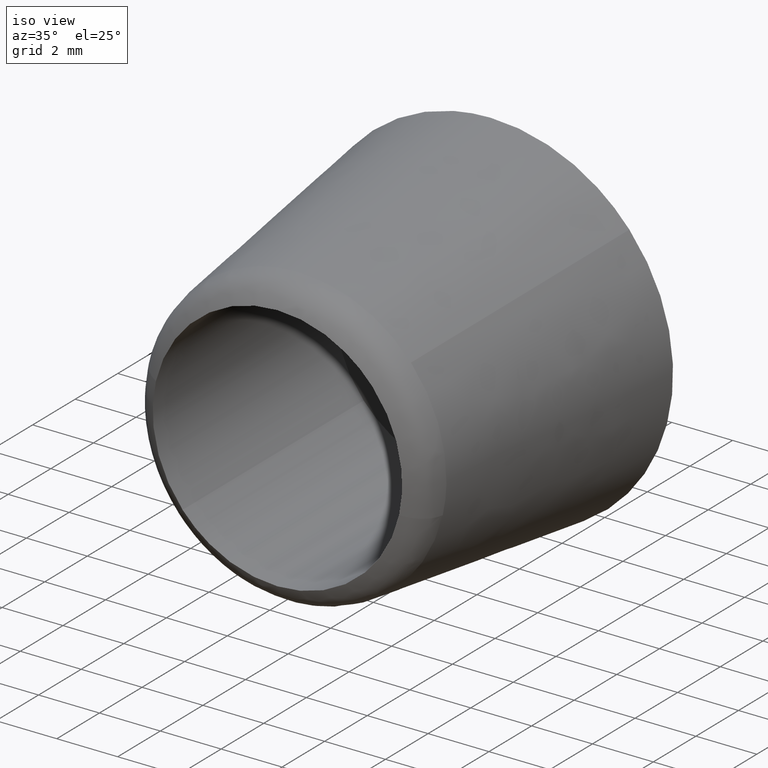
[diagram: clean part render]
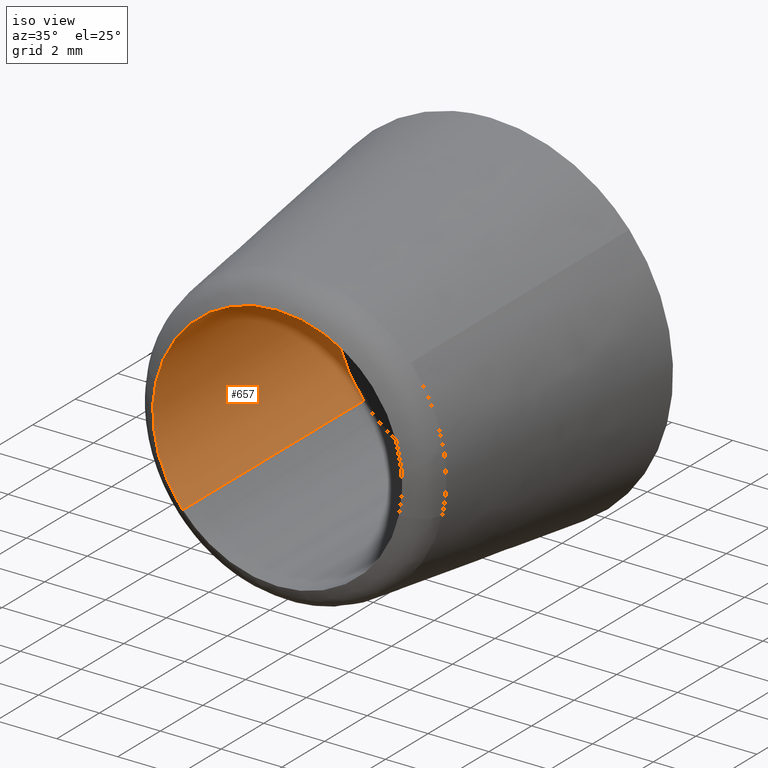
[diagram: same view with one face highlighted and labeled with its STEP entity id]
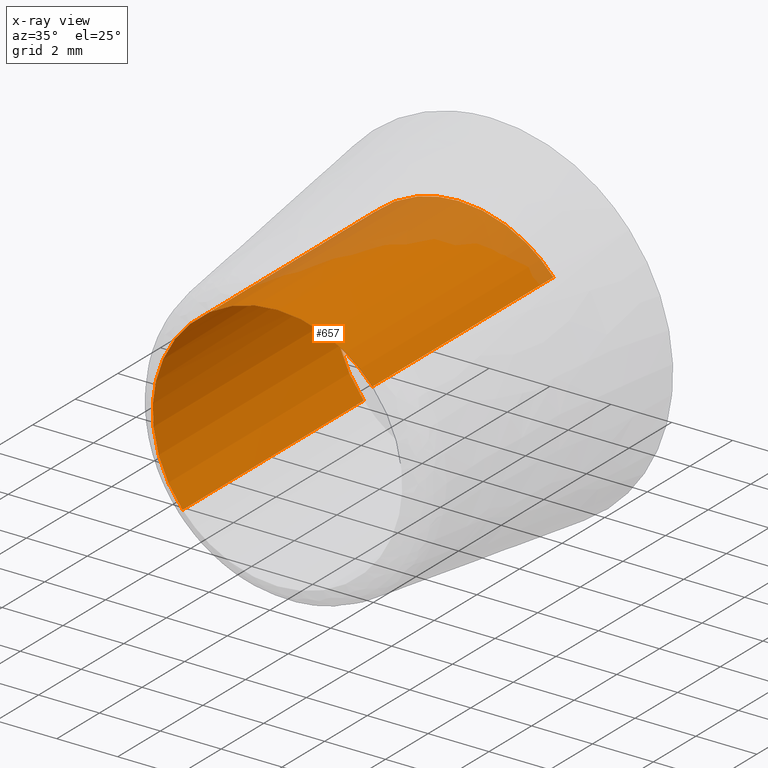
[diagram: x-ray of the same camera — body ghosted, the highlighted face saturated]
A machine part, iso view. The second image highlights one B-rep face of the part: STEP entity #657.
The next image is the same camera in x-ray: the body ghosted, the highlighted face saturated — about 15% of this face is hidden behind the body in this view.
In plain terms, the highlighted face is a freeform B-spline surface patch.
Its self-contained STEP definition (entity closure, byte-faithful):
#464=CARTESIAN_POINT('',(3.117664501935782,-8.500000000000000,2.662736947835723));
#465=VERTEX_POINT('',#464);
#483=CARTESIAN_POINT('',(3.117664501418083,7.910339E-016,2.662736948441872));
#484=VERTEX_POINT('',#483);
#485=CARTESIAN_POINT('',(3.117664501935782,-8.500000000000000,2.662736947835723));
#486=CARTESIAN_POINT('',(3.117664501418083,7.910339E-016,2.662736948441872));
#487=QUASI_UNIFORM_CURVE('',1,(#485,#486),.UNSPECIFIED.,.F.,.U.);
#488=EDGE_CURVE('',#465,#484,#487,.T.);
#507=CARTESIAN_POINT('',(-3.117664501418084,-2.081668E-016,-2.662736948441871));
#508=VERTEX_POINT('',#507);
#522=CARTESIAN_POINT('',(-3.117664501935782,-8.500000000000000,-2.662736947835723));
#523=VERTEX_POINT('',#522);
#524=CARTESIAN_POINT('',(-3.117664501935782,-8.500000000000000,-2.662736947835723));
#525=CARTESIAN_POINT('',(-3.117664501418084,-2.081668E-016,-2.662736948441871));
#526=QUASI_UNIFORM_CURVE('',1,(#524,#525),.UNSPECIFIED.,.F.,.U.);
#527=EDGE_CURVE('',#523,#508,#526,.T.);
#560=CARTESIAN_POINT('',(-3.117664458960126,-8.712500000000002,-2.662736998153752));
#561=CARTESIAN_POINT('',(-5.780401457113880,-8.712500000000002,0.454927460806374));
#562=CARTESIAN_POINT('',(-2.662736998153752,-8.712500000000002,3.117664458960126));
#563=CARTESIAN_POINT('',(0.454927460806374,-8.712500000000002,5.780401457113880));
#564=CARTESIAN_POINT('',(3.117664458960126,-8.712500000000002,2.662736998153752));
#565=CARTESIAN_POINT('',(-3.117664458960126,0.217812500000001,-2.662736998153752));
#566=CARTESIAN_POINT('',(-5.780401457113880,0.217812500000001,0.454927460806374));
#567=CARTESIAN_POINT('',(-2.662736998153752,0.217812500000001,3.117664458960126));
#568=CARTESIAN_POINT('',(0.454927460806374,0.217812500000001,5.780401457113880));
#569=CARTESIAN_POINT('',(3.117664458960126,0.217812500000001,2.662736998153752));
#577=(BOUNDED_SURFACE()B_SPLINE_SURFACE(2,1,((#560,#565),(#561,#566),(#562,#567),(#563,#568),(#564,#569)),.UNSPECIFIED.,.F.,.F.,.U.)B_SPLINE_SURFACE_WITH_KNOTS((3,2,3),(2,2),(0.0,6.793102422918758,13.586204845837520),(0.0,8.930312500000003),.UNSPECIFIED.)GEOMETRIC_REPRESENTATION_ITEM()RATIONAL_B_SPLINE_SURFACE(((1.0,1.0),(0.707106781186548,0.707106781186548),(1.0,1.0),(0.707106781186548,0.707106781186548),(1.0,1.0)))REPRESENTATION_ITEM('')SURFACE());
#578=CARTESIAN_POINT('',(0.0,-8.500000000000000,4.100000000000001));
#579=VERTEX_POINT('',#578);
#580=CARTESIAN_POINT('',(0.0,-8.500000000000000,4.100000000000001));
#581=CARTESIAN_POINT('',(1.890125969388039,-8.500000000000002,4.100000000000000));
#582=CARTESIAN_POINT('',(3.117664501935783,-8.500000000000000,2.662736947835723));
#590=(BOUNDED_CURVE()B_SPLINE_CURVE(2,(#580,#581,#582),.UNSPECIFIED.,.F.,.U.)B_SPLINE_CURVE_WITH_KNOTS((3,3),(0.0,0.136856843528716),.UNSPECIFIED.)CURVE()GEOMETRIC_REPRESENTATION_ITEM()RATIONAL_B_SPLINE_CURVE((1.0,0.839662234328901,0.854871032723351))REPRESENTATION_ITEM(''));
#591=EDGE_CURVE('',#579,#465,#590,.T.);
#592=ORIENTED_EDGE('',*,*,#591,.F.);
#593=CARTESIAN_POINT('',(-3.995560178538303,-8.499999999954829,0.919510119940747));
#594=VERTEX_POINT('',#593);
#595=CARTESIAN_POINT('',(-3.995560178538302,-8.499999999954829,0.919510119940747));
#596=CARTESIAN_POINT('',(-3.263624604808229,-8.500000000000002,4.100000000000001));
#597=CARTESIAN_POINT('',(0.0,-8.500000000000000,4.100000000000001));
#605=(BOUNDED_CURVE()B_SPLINE_CURVE(2,(#595,#596,#597),.UNSPECIFIED.,.F.,.U.)B_SPLINE_CURVE_WITH_KNOTS((3,3),(0.788352912383625,1.0),.UNSPECIFIED.)CURVE()GEOMETRIC_REPRESENTATION_ITEM()RATIONAL_B_SPLINE_CURVE((0.923920098758361,0.752040013022189,1.0))REPRESENTATION_ITEM(''));
#606=EDGE_CURVE('',#594,#579,#605,.T.);
#607=ORIENTED_EDGE('',*,*,#606,.F.);
#608=CARTESIAN_POINT('',(-3.117664501935783,-8.500000000000000,-2.662736947835723));
#609=CARTESIAN_POINT('',(-4.100000000000001,-8.500000000000000,-1.512569780971512));
#610=CARTESIAN_POINT('',(-4.100000000000001,-8.500000000000000,0.0));
#611=CARTESIAN_POINT('',(-4.100000000000001,-8.500000000000002,0.465686303189203));
#612=CARTESIAN_POINT('',(-3.995560178538303,-8.499999999954829,0.919510119940747));
#620=(BOUNDED_CURVE()B_SPLINE_CURVE(2,(#608,#609,#610,#611,#612),.UNSPECIFIED.,.F.,.U.)B_SPLINE_CURVE_WITH_KNOTS((3,2,3),(0.636856843528716,0.750000000000000,0.788352912383625),.UNSPECIFIED.)CURVE()GEOMETRIC_REPRESENTATION_ITEM()RATIONAL_B_SPLINE_CURVE((0.854871032723351,0.867444546857646,1.0,0.955066768164359,0.923920098758362))REPRESENTATION_ITEM(''));
#621=EDGE_CURVE('',#523,#594,#620,.T.);
#622=ORIENTED_EDGE('',*,*,#621,.F.);
#623=ORIENTED_EDGE('',*,*,#527,.T.);
#624=CARTESIAN_POINT('',(0.0,0.0,4.100000000000001));
#625=VERTEX_POINT('',#624);
#626=CARTESIAN_POINT('',(-3.117664501418084,-2.081668E-016,-2.662736948441871));
#627=CARTESIAN_POINT('',(-4.100000000000001,0.0,-1.512569781877140));
#628=CARTESIAN_POINT('',(-4.100000000000001,0.0,0.0));
#629=CARTESIAN_POINT('',(-4.100000000000001,0.0,4.100000000000001));
#630=CARTESIAN_POINT('',(0.0,0.0,4.100000000000001));
#638=(BOUNDED_CURVE()B_SPLINE_CURVE(2,(#626,#627,#628,#629,#630),.UNSPECIFIED.,.F.,.U.)B_SPLINE_CURVE_WITH_KNOTS((3,2,3),(0.636856843469953,0.750000000000000,1.0),.UNSPECIFIED.)CURVE()GEOMETRIC_REPRESENTATION_ITEM()RATIONAL_B_SPLINE_CURVE((0.854871032710290,0.867444546788801,1.0,0.707106781186547,1.0))REPRESENTATION_ITEM(''));
#639=EDGE_CURVE('',#508,#625,#638,.T.);
#640=ORIENTED_EDGE('',*,*,#639,.T.);
#641=CARTESIAN_POINT('',(0.0,0.0,4.100000000000001));
#642=CARTESIAN_POINT('',(1.890125968421488,0.0,4.100000000000001));
#643=CARTESIAN_POINT('',(3.117664501418083,7.910339E-016,2.662736948441872));
#651=(BOUNDED_CURVE()B_SPLINE_CURVE(2,(#641,#642,#643),.UNSPECIFIED.,.F.,.U.)B_SPLINE_CURVE_WITH_KNOTS((3,3),(0.0,0.136856843469953),.UNSPECIFIED.)CURVE()GEOMETRIC_REPRESENTATION_ITEM()RATIONAL_B_SPLINE_CURVE((1.0,0.839662234397746,0.854871032710290))REPRESENTATION_ITEM(''));
#652=EDGE_CURVE('',#625,#484,#651,.T.);
#653=ORIENTED_EDGE('',*,*,#652,.T.);
#654=ORIENTED_EDGE('',*,*,#488,.F.);
#655=EDGE_LOOP('',(#592,#607,#622,#623,#640,#653,#654));
#656=FACE_OUTER_BOUND('',#655,.T.);
#657=ADVANCED_FACE('',(#656),#577,.F.);